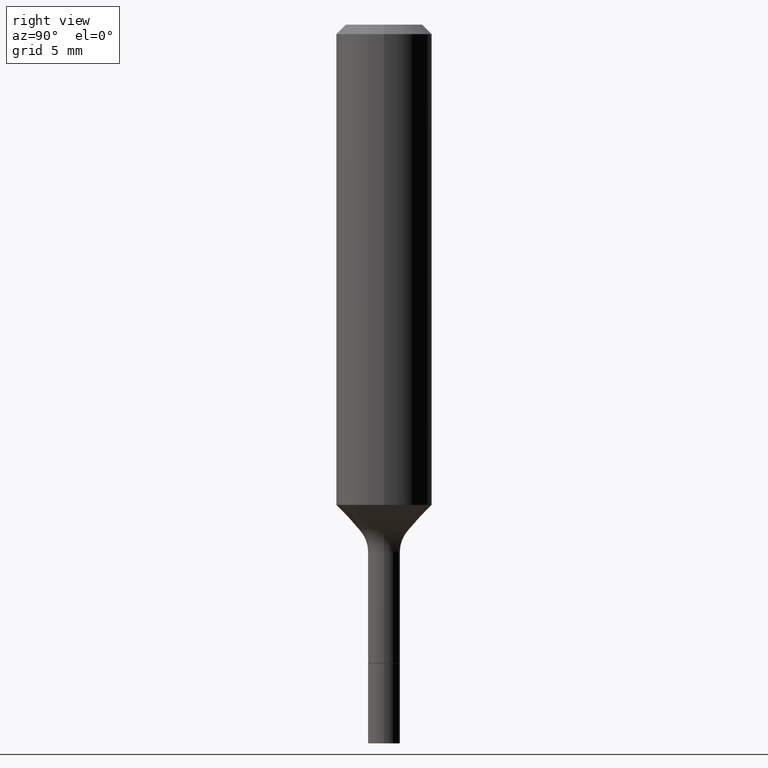
[diagram: clean part render]
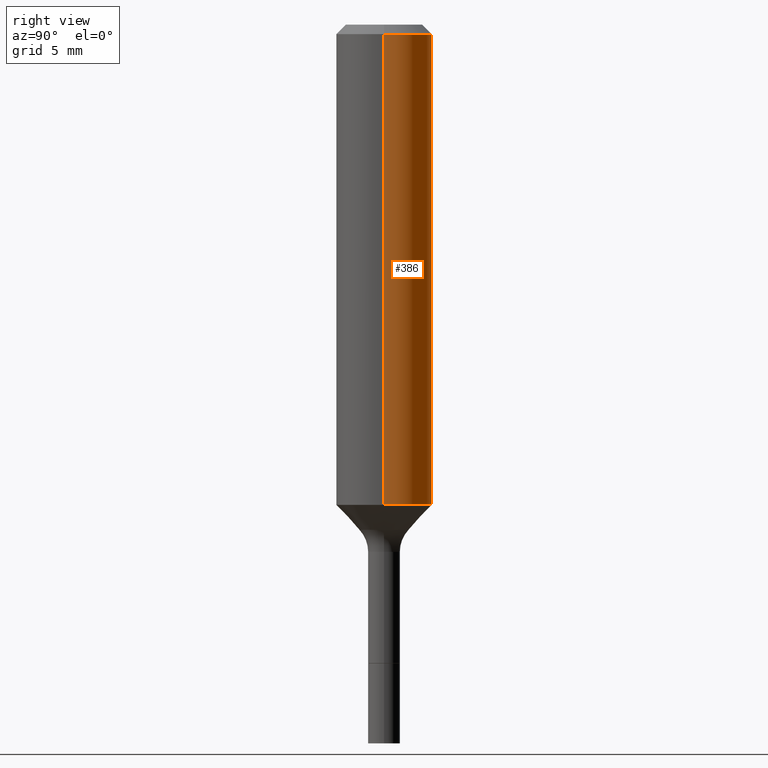
[diagram: same view with one face highlighted and labeled with its STEP entity id]
A machine part, right view. The second image highlights one B-rep face of the part: STEP entity #386.
In plain terms, the highlighted cylindrical surface (partial cylindrical patch) has radius 2.9997 mm, axis along (-0, 0, 1).
Its self-contained STEP definition (entity closure, byte-faithful):
#8 = VERTEX_POINT ( 'NONE', #454 ) ;
#14 = EDGE_CURVE ( 'NONE', #71, #412, #350, .T. ) ;
#17 = DIRECTION ( 'NONE',  ( 1.000000000000000000, -6.982962677686266711E-15, 4.876176775795936353E-29 ) ) ;
#25 = DIRECTION ( 'NONE',  ( 1.000000000000000000, -6.982962677686269077E-15, 0.000000000000000000 ) ) ;
#36 = VERTEX_POINT ( 'NONE', #187 ) ;
#41 = ORIENTED_EDGE ( 'NONE', *, *, #14, .T. ) ;
#46 = AXIS2_PLACEMENT_3D ( 'NONE', #142, #190, #25 ) ;
#58 = AXIS2_PLACEMENT_3D ( 'NONE', #302, #143, #390 ) ;
#61 = VECTOR ( 'NONE', #281, 39.37007874015748143 ) ;
#71 = VERTEX_POINT ( 'NONE', #182 ) ;
#77 = AXIS2_PLACEMENT_3D ( 'NONE', #347, #377, #17 ) ;
#95 = EDGE_LOOP ( 'NONE', ( #41, #365, #208, #210 ) ) ;
#133 = EDGE_CURVE ( 'NONE', #412, #36, #359, .T. ) ;
#142 = CARTESIAN_POINT ( 'NONE',  ( 2.894794661913970224E-29, -4.132999577133109060E-15, -1.183738126036360860 ) ) ;
#143 = DIRECTION ( 'NONE',  ( -2.445468806185136597E-29, 3.491481338843145583E-15, 1.000000000000000000 ) ) ;
#182 = CARTESIAN_POINT ( 'NONE',  ( 0.1181000000000001354, -4.957687469367858112E-15, -1.183738126036360860 ) ) ;
#187 = CARTESIAN_POINT ( 'NONE',  ( -0.1180999999999999966, -1.268583212245612878E-15, -0.02362000000000013741 ) ) ;
#190 = DIRECTION ( 'NONE',  ( -2.445468806185136597E-29, 3.491481338843145583E-15, 1.000000000000000000 ) ) ;
#200 = CARTESIAN_POINT ( 'NONE',  ( -0.1181000000000001354, -3.293848606200430074E-15, -1.183738126036360860 ) ) ;
#208 = ORIENTED_EDGE ( 'NONE', *, *, #433, .F. ) ;
#210 = ORIENTED_EDGE ( 'NONE', *, *, #335, .F. ) ;
#212 = VECTOR ( 'NONE', #218, 39.37007874015748143 ) ;
#214 = FACE_OUTER_BOUND ( 'NONE', #95, .T. ) ;
#218 = DIRECTION ( 'NONE',  ( -2.445468806185136877E-29, 3.491481338843145188E-15, 1.000000000000000000 ) ) ;
#270 = CIRCLE ( 'NONE', #58, 0.1180999999999999966 ) ;
#281 = DIRECTION ( 'NONE',  ( -2.445468806185136877E-29, 3.491481338843145188E-15, 1.000000000000000000 ) ) ;
#284 = CARTESIAN_POINT ( 'NONE',  ( -0.1181000000000000660, 8.391509709326787887E-16, -5.809262341591047287E-30 ) ) ;
#302 = CARTESIAN_POINT ( 'NONE',  ( 5.776197320209326656E-31, -8.246878922347558061E-17, -0.02362000000000013741 ) ) ;
#335 = EDGE_CURVE ( 'NONE', #71, #8, #391, .T. ) ;
#347 = CARTESIAN_POINT ( 'NONE',  ( 0.000000000000000000, 0.000000000000000000, 0.000000000000000000 ) ) ;
#350 = CIRCLE ( 'NONE', #46, 0.1181000000000001354 ) ;
#359 = LINE ( 'NONE', #284, #61 ) ;
#365 = ORIENTED_EDGE ( 'NONE', *, *, #133, .T. ) ;
#377 = DIRECTION ( 'NONE',  ( -2.445468806185136597E-29, 3.491481338843145583E-15, 1.000000000000000000 ) ) ;
#386 = ADVANCED_FACE ( 'NONE', ( #214 ), #464, .T. ) ;
#390 = DIRECTION ( 'NONE',  ( 1.000000000000000000, -6.982962677686266711E-15, 0.000000000000000000 ) ) ;
#391 = LINE ( 'NONE', #462, #212 ) ;
#412 = VERTEX_POINT ( 'NONE', #200 ) ;
#433 = EDGE_CURVE ( 'NONE', #8, #36, #270, .T. ) ;
#454 = CARTESIAN_POINT ( 'NONE',  ( 0.1180999999999999966, -9.071566814582237199E-16, -0.02362000000000013741 ) ) ;
#462 = CARTESIAN_POINT ( 'NONE',  ( 0.1181000000000000660, -8.246878922347485584E-16, 5.758764772215003944E-30 ) ) ;
#464 = CYLINDRICAL_SURFACE ( 'NONE', #77, 0.1181000000000000660 ) ;